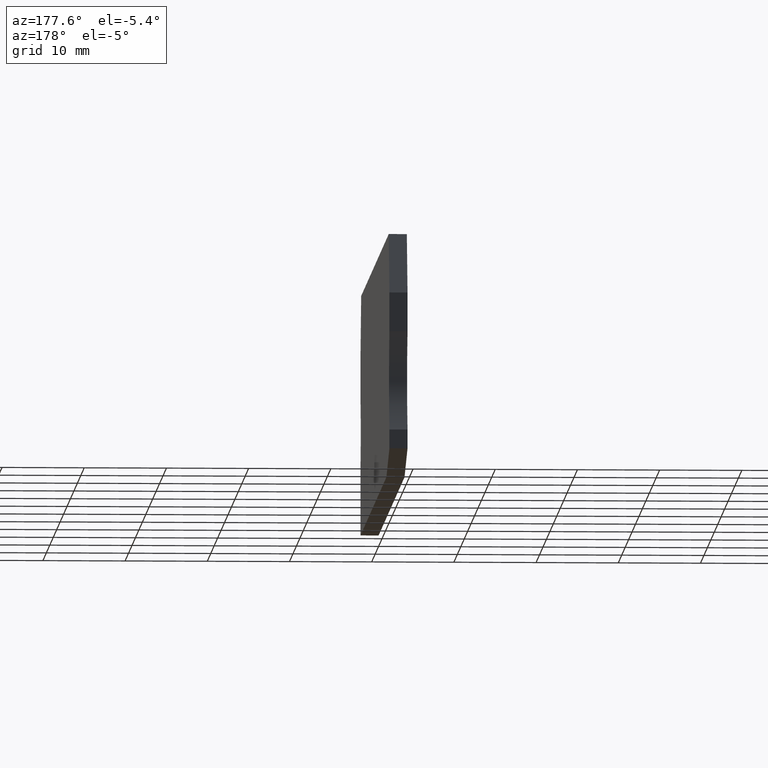
[diagram: clean part render]
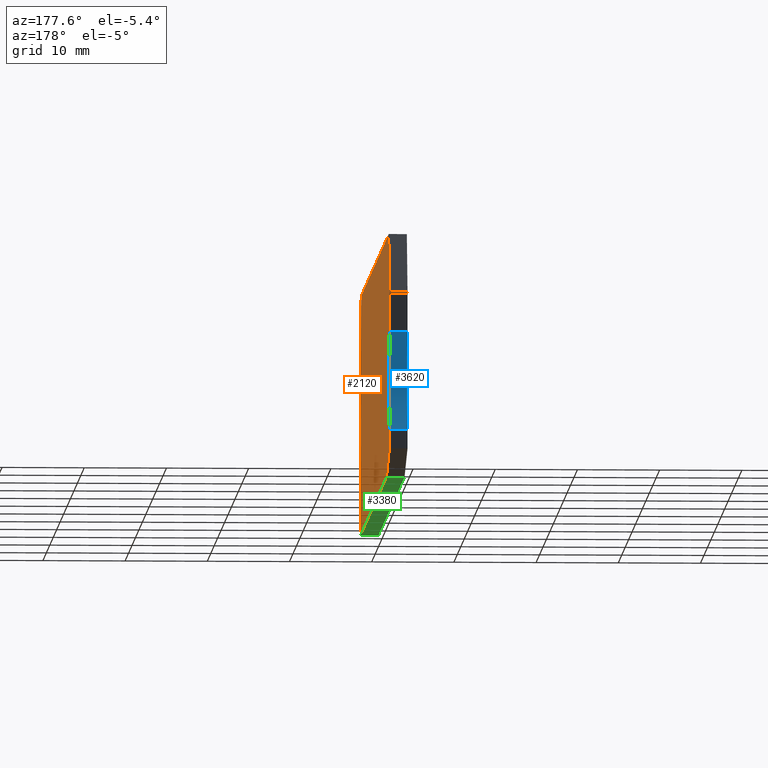
[diagram: same view with three faces highlighted in distinct colors, each labeled with its STEP entity id]
A machine part, auxiliary view with three faces highlighted in distinct colors.
Their STEP definitions:

[orange] entity #2120 — the highlighted planar face has unit normal (-1, 0, -0).
#200=CARTESIAN_POINT('',(-34.1678327783247,-16.4655444566093,55.37));
#210=VERTEX_POINT('',#200);
#240=CARTESIAN_POINT('',(-34.1678327783247,-12.1300507694265,55.37));
#250=DIRECTION('',(0.,-1.,0.));
#260=VECTOR('',#250,1.);
#270=LINE('',#240,#260);
#280=CARTESIAN_POINT('',(-34.1678327783247,-21.2000000000028,55.37));
#290=VERTEX_POINT('',#280);
#300=EDGE_CURVE('',#210,#290,#270,.T.);
#590=CARTESIAN_POINT('',(49.8321672216756,-35.4943010628528,55.37));
#600=VERTEX_POINT('',#590);
#750=CARTESIAN_POINT('',(41.1442977349533,-38.2000000000015,55.37));
#760=VERTEX_POINT('',#750);
#790=CARTESIAN_POINT('',(11.4461541156283,-47.4490150489618,55.37));
#800=DIRECTION('',(-0.954769257307126,-0.297347717834187,0.));
#810=VECTOR('',#800,1.);
#820=LINE('',#790,#810);
#830=EDGE_CURVE('',#600,#760,#820,.T.);
#1000=CARTESIAN_POINT('',(49.8321672216757,-12.1300507694265,55.37));
#1010=DIRECTION('',(5.55111512312578E-17,1.,0.));
#1020=VECTOR('',#1010,1.);
#1030=LINE('',#1000,#1020);
#1040=CARTESIAN_POINT('',(49.8321672216757,-21.2000000000025,55.37));
#1050=VERTEX_POINT('',#1040);
#1060=CARTESIAN_POINT('',(49.8321672216757,-16.4655444566131,55.37));
#1070=VERTEX_POINT('',#1060);
#1080=EDGE_CURVE('',#1050,#1070,#1030,.T.);
#1420=CARTESIAN_POINT('',(35.840579,-37.08196,55.37));
#1430=DIRECTION('',(0.,0.,-1.));
#1440=DIRECTION('',(-1.,0.,0.));
#1450=AXIS2_PLACEMENT_3D('',#1420,#1430,#1440);
#1460=PLANE('',#1450);
#1470=CARTESIAN_POINT('',(63.5798943065431,-27.2000000000027,55.37));
#1480=DIRECTION('',(0.,0.,1.));
#1490=DIRECTION('',(1.,0.,0.));
#1500=AXIS2_PLACEMENT_3D('',#1470,#1480,#1490);
#1510=CIRCLE('',#1500,15.);
#1520=CARTESIAN_POINT('',(49.8321672216756,-33.2000000000027,55.37));
#1530=VERTEX_POINT('',#1520);
#1540=EDGE_CURVE('',#1050,#1530,#1510,.T.);
#1550=ORIENTED_EDGE('',*,*,#1540,.F.);
#1560=CARTESIAN_POINT('',(49.8321672216756,-12.1300507694265,55.37));
#1570=DIRECTION('',(8.32667268468867E-17,1.,0.));
#1580=VECTOR('',#1570,1.);
#1590=LINE('',#1560,#1580);
#1600=EDGE_CURVE('',#600,#1530,#1590,.T.);
#1610=ORIENTED_EDGE('',*,*,#1600,.T.);
#1620=ORIENTED_EDGE('',*,*,#830,.F.);
#1630=CARTESIAN_POINT('',(11.4461541156283,-38.2000000000015,55.37));
#1640=DIRECTION('',(1.,0.,0.));
#1650=VECTOR('',#1640,1.);
#1660=LINE('',#1630,#1650);
#1670=CARTESIAN_POINT('',(-34.1678327783247,-38.2000000000015,55.37));
#1680=VERTEX_POINT('',#1670);
#1690=EDGE_CURVE('',#1680,#760,#1660,.T.);
#1700=ORIENTED_EDGE('',*,*,#1690,.T.);
#1710=CARTESIAN_POINT('',(-34.1678327783247,-12.1300507694265,55.37));
#1720=DIRECTION('',(0.,-1.,0.));
#1730=VECTOR('',#1720,1.);
#1740=LINE('',#1710,#1730);
#1750=CARTESIAN_POINT('',(-34.1678327783247,-30.2000000000027,55.37));
#1760=VERTEX_POINT('',#1750);
#1770=EDGE_CURVE('',#1760,#1680,#1740,.T.);
#1780=ORIENTED_EDGE('',*,*,#1770,.T.);
#1790=CARTESIAN_POINT('',(-48.4769207995789,-25.7000000000027,55.37));
#1800=DIRECTION('',(0.,0.,1.));
#1810=DIRECTION('',(1.,0.,0.));
#1820=AXIS2_PLACEMENT_3D('',#1790,#1800,#1810);
#1830=CIRCLE('',#1820,15.);
#1840=EDGE_CURVE('',#1760,#290,#1830,.T.);
#1850=ORIENTED_EDGE('',*,*,#1840,.F.);
#1860=ORIENTED_EDGE('',*,*,#300,.T.);
#1870=CARTESIAN_POINT('',(-33.0061407460509,-12.1300507694265,55.37));
#1880=DIRECTION('',(-0.258819045103118,-0.965925826288908,0.));
#1890=VECTOR('',#1880,1.);
#1900=LINE('',#1870,#1890);
#1910=CARTESIAN_POINT('',(-32.2076385489778,-9.15000000000162,55.37));
#1920=VERTEX_POINT('',#1910);
#1930=EDGE_CURVE('',#1920,#210,#1900,.T.);
#1940=ORIENTED_EDGE('',*,*,#1930,.T.);
#1950=CARTESIAN_POINT('',(11.4461541156283,-9.15000000000162,55.37));
#1960=DIRECTION('',(-1.,0.,0.));
#1970=VECTOR('',#1960,1.);
#1980=LINE('',#1950,#1970);
#1990=CARTESIAN_POINT('',(47.8719729923293,-9.15000000000162,55.37));
#2000=VERTEX_POINT('',#1990);
#2010=EDGE_CURVE('',#2000,#1920,#1980,.T.);
#2020=ORIENTED_EDGE('',*,*,#2010,.T.);
#2030=CARTESIAN_POINT('',(48.6704751894018,-12.1300507694265,55.37));
#2040=DIRECTION('',(-0.258819045102926,0.96592582628896,0.));
#2050=VECTOR('',#2040,1.);
#2060=LINE('',#2030,#2050);
#2070=EDGE_CURVE('',#1070,#2000,#2060,.T.);
#2080=ORIENTED_EDGE('',*,*,#2070,.T.);
#2090=ORIENTED_EDGE('',*,*,#1080,.T.);
#2100=EDGE_LOOP('',(#2090,#2080,#2020,#1940,#1860,#1850,#1780,#1700,
#1620,#1610,#1550));
#2110=FACE_OUTER_BOUND('',#2100,.T.);
#2120=ADVANCED_FACE('',(#2110),#1460,.F.);

[blue] entity #3620 — the highlighted cylindrical surface (partial cylindrical patch) has radius 15 mm, axis along (1, -0, 0).
#1040=CARTESIAN_POINT('',(49.8321672216757,-21.2000000000025,55.37));
#1050=VERTEX_POINT('',#1040);
#1220=CARTESIAN_POINT('',(49.8321672216757,-21.2000000000025,53.17));
#1230=VERTEX_POINT('',#1220);
#1260=CARTESIAN_POINT('',(49.8321672216757,-21.2000000000025,
53.1700000000027));
#1270=DIRECTION('',(0.,0.,1.));
#1280=VECTOR('',#1270,1.);
#1290=LINE('',#1260,#1280);
#1300=EDGE_CURVE('',#1230,#1050,#1290,.T.);
#1470=CARTESIAN_POINT('',(63.5798943065431,-27.2000000000027,55.37));
#1480=DIRECTION('',(0.,0.,1.));
#1490=DIRECTION('',(1.,0.,0.));
#1500=AXIS2_PLACEMENT_3D('',#1470,#1480,#1490);
#1510=CIRCLE('',#1500,15.);
#1520=CARTESIAN_POINT('',(49.8321672216756,-33.2000000000027,55.37));
#1530=VERTEX_POINT('',#1520);
#1540=EDGE_CURVE('',#1050,#1530,#1510,.T.);
#3010=CARTESIAN_POINT('',(49.8321672216756,-33.2000000000027,53.17));
#3020=VERTEX_POINT('',#3010);
#3050=CARTESIAN_POINT('',(63.5798943065431,-27.2000000000027,53.17));
#3060=DIRECTION('',(0.,0.,1.));
#3070=DIRECTION('',(1.,0.,0.));
#3080=AXIS2_PLACEMENT_3D('',#3050,#3060,#3070);
#3090=CIRCLE('',#3080,15.);
#3100=EDGE_CURVE('',#1230,#3020,#3090,.T.);
#3460=CARTESIAN_POINT('',(63.5798943065431,-27.2000000000027,
53.1700000000027));
#3470=DIRECTION('',(0.,0.,1.));
#3480=DIRECTION('',(1.,0.,0.));
#3490=AXIS2_PLACEMENT_3D('',#3460,#3470,#3480);
#3500=CYLINDRICAL_SURFACE('',#3490,15.);
#3510=ORIENTED_EDGE('',*,*,#1300,.T.);
#3520=ORIENTED_EDGE('',*,*,#3100,.F.);
#3530=CARTESIAN_POINT('',(49.8321672216756,-33.2000000000027,
53.1700000000027));
#3540=DIRECTION('',(0.,0.,1.));
#3550=VECTOR('',#3540,1.);
#3560=LINE('',#3530,#3550);
#3570=EDGE_CURVE('',#3020,#1530,#3560,.T.);
#3580=ORIENTED_EDGE('',*,*,#3570,.F.);
#3590=ORIENTED_EDGE('',*,*,#1540,.T.);
#3600=EDGE_LOOP('',(#3590,#3580,#3520,#3510));
#3610=FACE_OUTER_BOUND('',#3600,.T.);
#3620=ADVANCED_FACE('',(#3610),#3500,.F.);

[green] entity #3380 — the highlighted planar face has unit normal (0, -0, -1).
#670=CARTESIAN_POINT('',(41.1442977349533,-38.2000000000015,53.17));
#680=VERTEX_POINT('',#670);
#710=CARTESIAN_POINT('',(41.1442977349533,-38.2000000000015,53.17));
#720=DIRECTION('',(0.,0.,1.));
#730=VECTOR('',#720,1.);
#740=LINE('',#710,#730);
#750=CARTESIAN_POINT('',(41.1442977349533,-38.2000000000015,55.37));
#760=VERTEX_POINT('',#750);
#770=EDGE_CURVE('',#680,#760,#740,.T.);
#1630=CARTESIAN_POINT('',(11.4461541156283,-38.2000000000015,55.37));
#1640=DIRECTION('',(1.,0.,0.));
#1650=VECTOR('',#1640,1.);
#1660=LINE('',#1630,#1650);
#1670=CARTESIAN_POINT('',(-34.1678327783247,-38.2000000000015,55.37));
#1680=VERTEX_POINT('',#1670);
#1690=EDGE_CURVE('',#1680,#760,#1660,.T.);
#2860=CARTESIAN_POINT('',(-34.1678327783247,-38.2000000000015,53.17));
#2870=VERTEX_POINT('',#2860);
#2900=CARTESIAN_POINT('',(11.4461541156283,-38.2000000000015,53.17));
#2910=DIRECTION('',(1.,0.,0.));
#2920=VECTOR('',#2910,1.);
#2930=LINE('',#2900,#2920);
#2940=EDGE_CURVE('',#2870,#680,#2930,.T.);
#3220=CARTESIAN_POINT('',(32.578459389798,-38.2000000000015,53.17));
#3230=DIRECTION('',(-0.,-1.,-0.));
#3240=DIRECTION('',(-1.,0.,0.));
#3250=AXIS2_PLACEMENT_3D('',#3220,#3230,#3240);
#3260=PLANE('',#3250);
#3270=ORIENTED_EDGE('',*,*,#2940,.T.);
#3280=CARTESIAN_POINT('',(-34.1678327783247,-38.2000000000015,53.17));
#3290=DIRECTION('',(0.,0.,1.));
#3300=VECTOR('',#3290,1.);
#3310=LINE('',#3280,#3300);
#3320=EDGE_CURVE('',#2870,#1680,#3310,.T.);
#3330=ORIENTED_EDGE('',*,*,#3320,.F.);
#3340=ORIENTED_EDGE('',*,*,#1690,.F.);
#3350=ORIENTED_EDGE('',*,*,#770,.T.);
#3360=EDGE_LOOP('',(#3350,#3340,#3330,#3270));
#3370=FACE_OUTER_BOUND('',#3360,.T.);
#3380=ADVANCED_FACE('',(#3370),#3260,.T.);